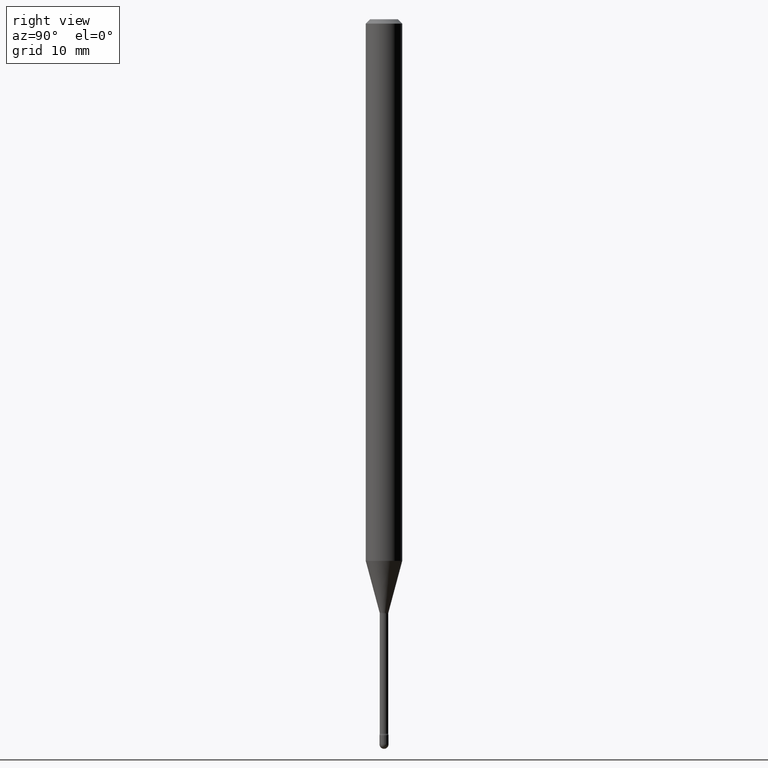
[diagram: clean part render]
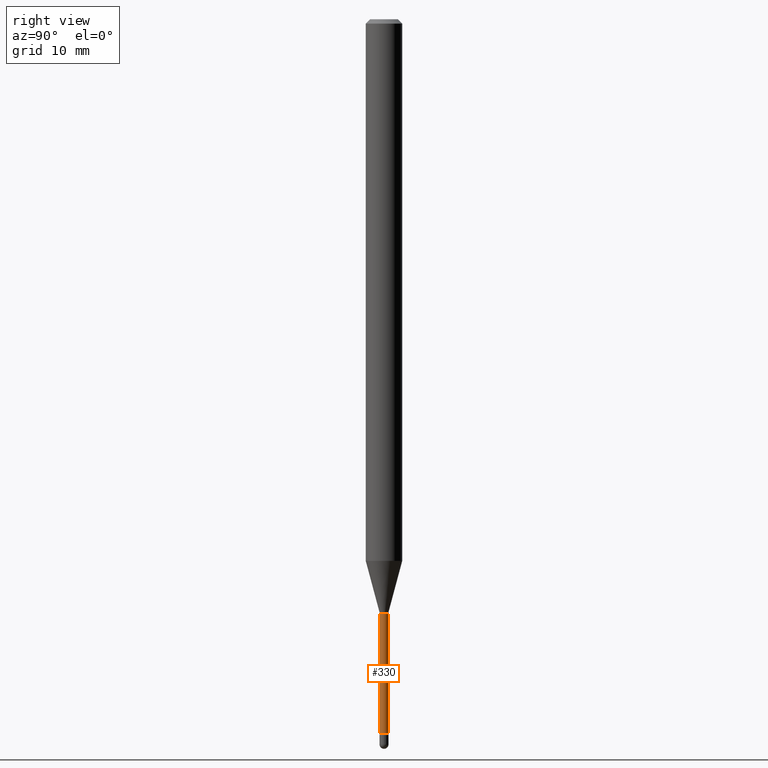
[diagram: same view with one face highlighted and labeled with its STEP entity id]
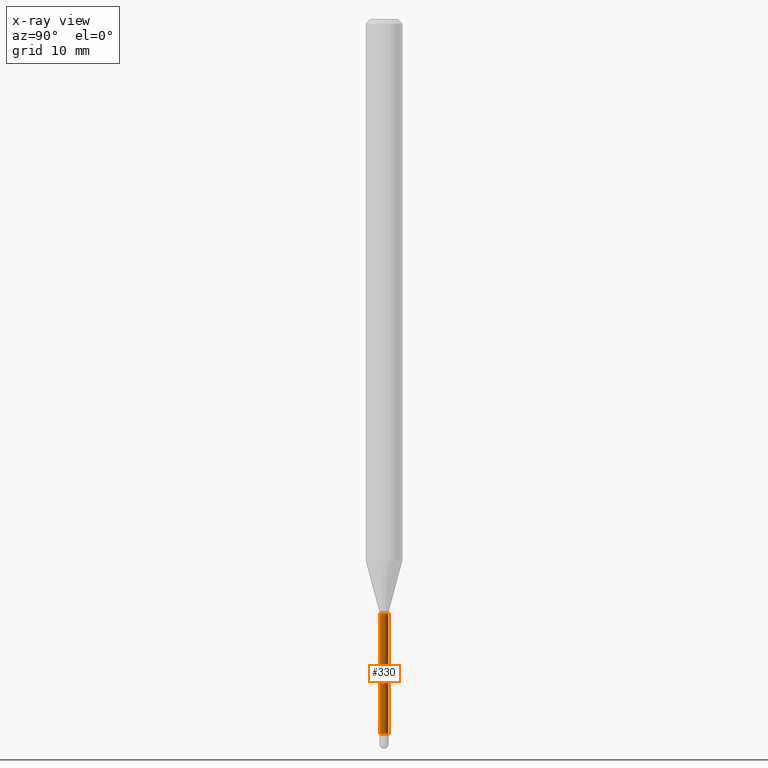
[diagram: x-ray of the same camera — body ghosted, the highlighted face saturated]
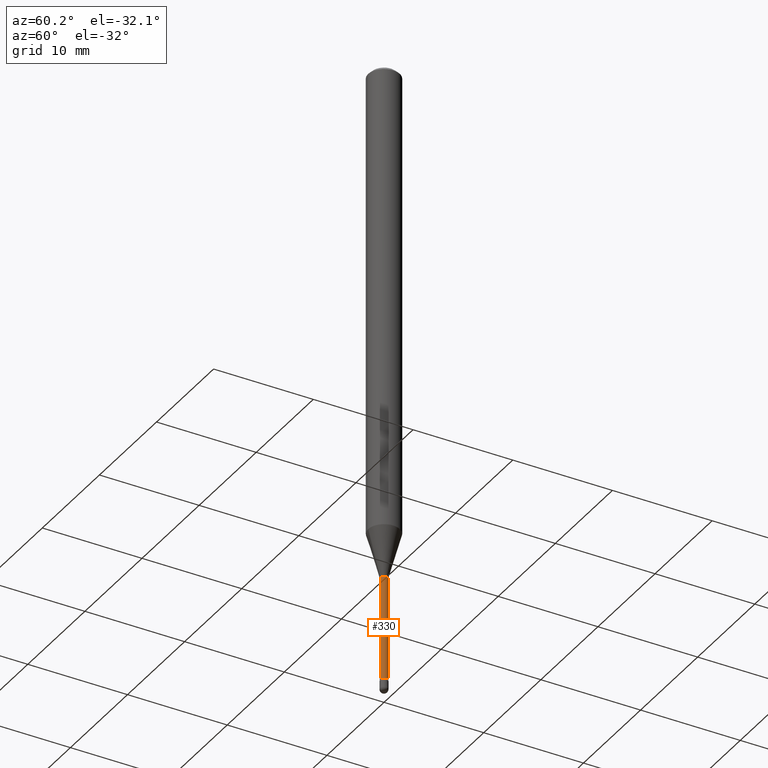
[diagram: same view with one face highlighted and labeled with its STEP entity id]
A machine part, right view. The second image highlights one B-rep face of the part: STEP entity #330.
The next image is the same camera in x-ray: the body ghosted, the highlighted face saturated — about 0% of this face is hidden behind the body in this view.
A second angle (auxiliary view) of the same face is appended — the face is thin or edge-on in the first view.
In plain terms, the highlighted cylindrical surface (edge-blend (fillet) strip) has radius 0.3696 mm, axis along (-0, 0, 1).
Its self-contained STEP definition (entity closure, byte-faithful):
#17 = VERTEX_POINT ( 'NONE', #70 ) ;
#33 = CIRCLE ( 'NONE', #493, 0.01455000000000000217 ) ;
#35 = DIRECTION ( 'NONE',  ( -2.445473815707476510E-29, 3.491474164922030519E-15, 1.000000000000000000 ) ) ;
#65 = EDGE_CURVE ( 'NONE', #285, #492, #291, .T. ) ;
#70 = CARTESIAN_POINT ( 'NONE',  ( -1.016021069602853717E-16, -0.01455000000000711453, -2.036974787463810888 ) ) ;
#87 = FACE_OUTER_BOUND ( 'NONE', #332, .T. ) ;
#125 = CARTESIAN_POINT ( 'NONE',  ( 5.985900383404751358E-29, -8.546244252633021898E-15, -2.447746667724196357 ) ) ;
#144 = CARTESIAN_POINT ( 'NONE',  ( 1.033839680531545705E-16, 0.01454999999999289327, -2.036974787463810888 ) ) ;
#151 = EDGE_CURVE ( 'NONE', #524, #285, #405, .T. ) ;
#185 = DIRECTION ( 'NONE',  ( -2.445473815707476510E-29, 3.491474164922030519E-15, 1.000000000000000000 ) ) ;
#208 = CARTESIAN_POINT ( 'NONE',  ( -1.169113584055446105E-44, 1.669184350826100908E-30, 4.780733988912460139E-16 ) ) ;
#223 = ORIENTED_EDGE ( 'NONE', *, *, #534, .F. ) ;
#244 = DIRECTION ( 'NONE',  ( -2.445473815707476510E-29, 3.491474164922030519E-15, 1.000000000000000000 ) ) ;
#250 = DIRECTION ( 'NONE',  ( -6.982962677686266711E-15, -1.000000000000000000, 3.491474164922028942E-15 ) ) ;
#265 = ORIENTED_EDGE ( 'NONE', *, *, #415, .F. ) ;
#285 = VERTEX_POINT ( 'NONE', #394 ) ;
#286 = CARTESIAN_POINT ( 'NONE',  ( 1.033839680530946541E-16, 0.01455000000000001258, 4.272724497916305187E-16 ) ) ;
#291 = LINE ( 'NONE', #286, #545 ) ;
#295 = ORIENTED_EDGE ( 'NONE', *, *, #151, .T. ) ;
#300 = DIRECTION ( 'NONE',  ( -6.982962677686265133E-15, -1.000000000000000000, 0.000000000000000000 ) ) ;
#305 = CYLINDRICAL_SURFACE ( 'NONE', #547, 0.01455000000000001258 ) ;
#317 = CARTESIAN_POINT ( 'NONE',  ( -1.016021069602754739E-16, -0.01455000000000856997, -2.447746667724196357 ) ) ;
#319 = CARTESIAN_POINT ( 'NONE',  ( -1.016021069603352671E-16, -0.01455000000000001258, 5.288743479908616571E-16 ) ) ;
#330 = ADVANCED_FACE ( 'NONE', ( #87 ), #305, .T. ) ;
#332 = EDGE_LOOP ( 'NONE', ( #295, #494, #265, #223 ) ) ;
#348 = DIRECTION ( 'NONE',  ( -2.445473815707476510E-29, 3.491474164922030519E-15, 1.000000000000000000 ) ) ;
#359 = DIRECTION ( 'NONE',  ( -6.982962677686266711E-15, -1.000000000000000000, 0.000000000000000000 ) ) ;
#394 = CARTESIAN_POINT ( 'NONE',  ( 1.067590460480151308E-16, 0.01454999999999147774, -2.447746667724196357 ) ) ;
#405 = CIRCLE ( 'NONE', #500, 0.01455000000000002472 ) ;
#415 = EDGE_CURVE ( 'NONE', #17, #492, #33, .T. ) ;
#424 = CARTESIAN_POINT ( 'NONE',  ( 4.981368505999052113E-29, -7.112044845027439155E-15, -2.036974787463810888 ) ) ;
#459 = LINE ( 'NONE', #319, #537 ) ;
#492 = VERTEX_POINT ( 'NONE', #144 ) ;
#493 = AXIS2_PLACEMENT_3D ( 'NONE', #424, #185, #359 ) ;
#494 = ORIENTED_EDGE ( 'NONE', *, *, #65, .T. ) ;
#500 = AXIS2_PLACEMENT_3D ( 'NONE', #125, #348, #300 ) ;
#524 = VERTEX_POINT ( 'NONE', #317 ) ;
#534 = EDGE_CURVE ( 'NONE', #524, #17, #459, .T. ) ;
#537 = VECTOR ( 'NONE', #546, 39.37007874015748143 ) ;
#545 = VECTOR ( 'NONE', #35, 39.37007874015748143 ) ;
#546 = DIRECTION ( 'NONE',  ( -2.445473815707476510E-29, 3.491474164922030519E-15, 1.000000000000000000 ) ) ;
#547 = AXIS2_PLACEMENT_3D ( 'NONE', #208, #244, #250 ) ;